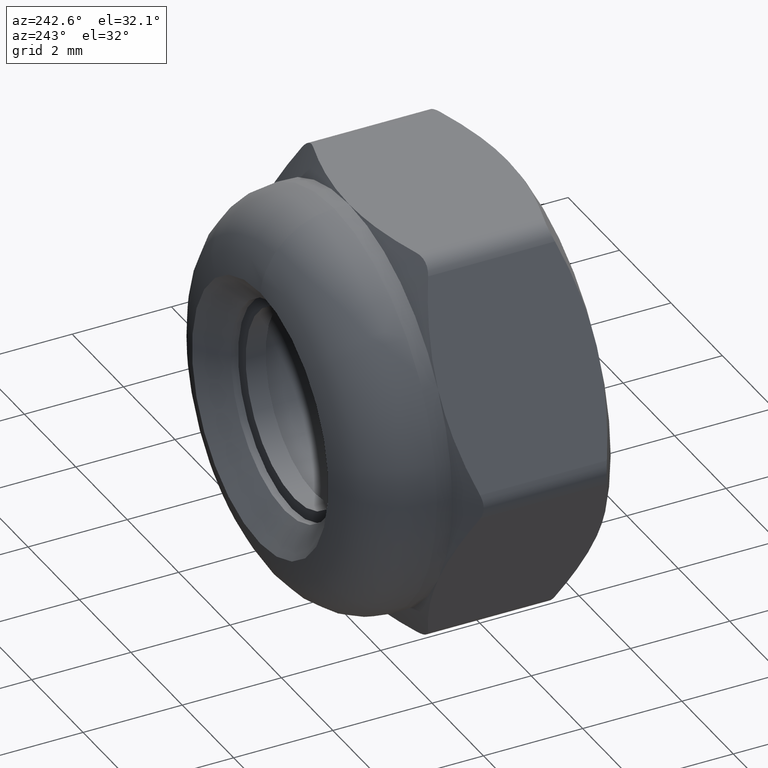
[diagram: clean part render]
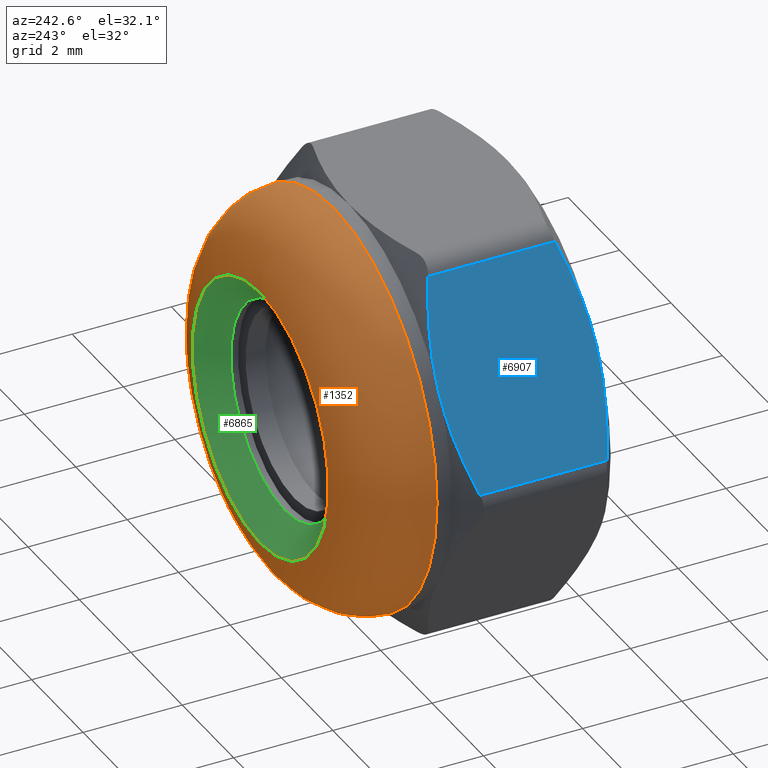
[diagram: same view with three faces highlighted in distinct colors, each labeled with its STEP entity id]
A machine part, auxiliary view with three faces highlighted in distinct colors.
Their STEP definitions:

[orange] entity #1352 — the highlighted toroidal blend (fillet) surface has major radius 2.5 mm and minor (blend) radius 1.5 mm.
#843 = CIRCLE ( 'NONE', #5137, 2.650000000000009237 ) ;
#1184 = CARTESIAN_POINT ( 'NONE',  ( 0.000000000000000000, 3.392481155659911263, -2.650000000000009237 ) ) ;
#1352 = ADVANCED_FACE ( 'NONE', ( #8805, #9768 ), #13320, .T. ) ;
#1473 = AXIS2_PLACEMENT_3D ( 'NONE', #6142, #9878, #3290 ) ;
#1885 = DIRECTION ( 'NONE',  ( 0.000000000000000000, -1.000000000000000000, 0.000000000000000000 ) ) ;
#2309 = ORIENTED_EDGE ( 'NONE', *, *, #14212, .F. ) ;
#2582 = VERTEX_POINT ( 'NONE', #1184 ) ;
#3290 = DIRECTION ( 'NONE',  ( 0.000000000000000000, 0.000000000000000000, 1.000000000000000000 ) ) ;
#4379 = CARTESIAN_POINT ( 'NONE',  ( 0.000000000000000000, 3.392481155659911263, 0.000000000000000000 ) ) ;
#5137 = AXIS2_PLACEMENT_3D ( 'NONE', #4379, #1885, #10431 ) ;
#5166 = CARTESIAN_POINT ( 'NONE',  ( 0.000000000000000000, 1.899999999999999689, 4.000000000000000000 ) ) ;
#6142 = CARTESIAN_POINT ( 'NONE',  ( 0.000000000000000000, 1.899999999999999689, 0.000000000000000000 ) ) ;
#6326 = CIRCLE ( 'NONE', #1473, 4.000000000000000000 ) ;
#6535 = EDGE_LOOP ( 'NONE', ( #2309 ) ) ;
#7774 = DIRECTION ( 'NONE',  ( 0.000000000000000000, 0.000000000000000000, 1.000000000000000000 ) ) ;
#8805 = FACE_OUTER_BOUND ( 'NONE', #14997, .T. ) ;
#9768 = FACE_OUTER_BOUND ( 'NONE', #6535, .T. ) ;
#9878 = DIRECTION ( 'NONE',  ( -0.000000000000000000, -1.000000000000000000, -0.000000000000000000 ) ) ;
#10319 = DIRECTION ( 'NONE',  ( 0.000000000000000000, 1.000000000000000000, 0.000000000000000000 ) ) ;
#10431 = DIRECTION ( 'NONE',  ( 0.000000000000000000, 0.000000000000000000, -1.000000000000000000 ) ) ;
#10501 = ORIENTED_EDGE ( 'NONE', *, *, #14073, .T. ) ;
#13320 = TOROIDAL_SURFACE ( 'NONE', #15633, 2.500000000000000000, 1.500000000000000000 ) ;
#14073 = EDGE_CURVE ( 'NONE', #2582, #2582, #843, .T. ) ;
#14101 = VERTEX_POINT ( 'NONE', #5166 ) ;
#14212 = EDGE_CURVE ( 'NONE', #14101, #14101, #6326, .T. ) ;
#14249 = CARTESIAN_POINT ( 'NONE',  ( 0.000000000000000000, 1.899999999999999689, 0.000000000000000000 ) ) ;
#14997 = EDGE_LOOP ( 'NONE', ( #10501 ) ) ;
#15633 = AXIS2_PLACEMENT_3D ( 'NONE', #14249, #10319, #7774 ) ;

[blue] entity #6907 — the highlighted planar face has unit normal (0.866, 0, -0.5).
#207 = CARTESIAN_POINT ( 'NONE',  ( -4.310360692517337888, 1.377699223232564663, 0.5342362816122031566 ) ) ;
#288 = B_SPLINE_CURVE_WITH_KNOTS ( 'NONE', 3,
 ( #4136, #7698, #10140, #11571, #207, #2672 ),
 .UNSPECIFIED., .F., .F.,
 ( 4, 2, 4 ),
 ( 0.002345898061757716469, 0.003361912581421082173, 0.004377927101084448311 ),
 .UNSPECIFIED. ) ;
#430 = PLANE ( 'NONE',  #5953 ) ;
#506 = VECTOR ( 'NONE', #7302, 1000.000000000000000 ) ;
#1049 = CARTESIAN_POINT ( 'NONE',  ( -2.617842537758170884, -1.377699223232563996, 3.465763718387799841 ) ) ;
#1083 = EDGE_CURVE ( 'NONE', #4367, #13002, #4014, .T. ) ;
#1158 = CARTESIAN_POINT ( 'NONE',  ( -2.453738644055909024, 1.279037853389166202, 3.750000000000000888 ) ) ;
#1199 = CARTESIAN_POINT ( 'NONE',  ( -4.474464586219600193, -1.279037853389166202, 0.2500000000000009437 ) ) ;
#1816 = CARTESIAN_POINT ( 'NONE',  ( -4.474464586219600193, 1.279037853389166646, 0.2500000000000010547 ) ) ;
#1887 = CARTESIAN_POINT ( 'NONE',  ( -3.464101615137753942, 1.600000000000000089, 2.000000000000000444 ) ) ;
#2181 = VERTEX_POINT ( 'NONE', #2693 ) ;
#2466 = CARTESIAN_POINT ( 'NONE',  ( -3.464101615137753942, 1.600000000000000089, 2.000000000000000444 ) ) ;
#2564 = ORIENTED_EDGE ( 'NONE', *, *, #5145, .T. ) ;
#2672 = CARTESIAN_POINT ( 'NONE',  ( -4.474464586219600193, 1.279037853389166646, 0.2500000000000010547 ) ) ;
#2693 = CARTESIAN_POINT ( 'NONE',  ( -2.453738644055909024, 1.279037853389166202, 3.750000000000000888 ) ) ;
#2733 = LINE ( 'NONE', #14327, #13862 ) ;
#2960 = CARTESIAN_POINT ( 'NONE',  ( -4.618802153517006737, 1.600000000000000089, 8.599241383207796206E-16 ) ) ;
#3946 = ORIENTED_EDGE ( 'NONE', *, *, #10965, .T. ) ;
#4014 = B_SPLINE_CURVE_WITH_KNOTS ( 'NONE', 3,
 ( #7352, #5207, #6477, #12754 ),
 .UNSPECIFIED., .F., .F.,
 ( 4, 4 ),
 ( 0.0002998517042431906861, 0.002345898061757718204 ),
 .UNSPECIFIED. ) ;
#4136 = CARTESIAN_POINT ( 'NONE',  ( -3.464101615137753942, 1.600000000000000089, 2.000000000000000444 ) ) ;
#4367 = VERTEX_POINT ( 'NONE', #1199 ) ;
#4415 = B_SPLINE_CURVE_WITH_KNOTS ( 'NONE', 3,
 ( #16006, #12209, #4554, #8517, #1049, #15792 ),
 .UNSPECIFIED., .F., .F.,
 ( 4, 2, 4 ),
 ( 0.002345898061757718204, 0.003361912581421084775, 0.004377927101084451780 ),
 .UNSPECIFIED. ) ;
#4554 = CARTESIAN_POINT ( 'NONE',  ( -3.120293610011477092, -1.569631693578380283, 2.595492932927614849 ) ) ;
#4859 = VERTEX_POINT ( 'NONE', #1887 ) ;
#4934 = CARTESIAN_POINT ( 'NONE',  ( -2.783142980624949470, 1.477079973810897506, 3.179454952828904002 ) ) ;
#5091 = EDGE_CURVE ( 'NONE', #13002, #13039, #4415, .T. ) ;
#5145 = EDGE_CURVE ( 'NONE', #2181, #4859, #15934, .T. ) ;
#5207 = CARTESIAN_POINT ( 'NONE',  ( -4.145060249650559747, -1.477079973810897062, 0.8205450471710978855 ) ) ;
#5953 = AXIS2_PLACEMENT_3D ( 'NONE', #2960, #8085, #12900 ) ;
#6477 = CARTESIAN_POINT ( 'NONE',  ( -3.809564516784439636, -1.600000000000045608, 1.401640702217772594 ) ) ;
#6530 = ORIENTED_EDGE ( 'NONE', *, *, #1083, .T. ) ;
#6834 = VERTEX_POINT ( 'NONE', #1816 ) ;
#6863 = DIRECTION ( 'NONE',  ( 0.000000000000000000, -1.000000000000000000, 0.000000000000000000 ) ) ;
#6907 = ADVANCED_FACE ( 'NONE', ( #12904 ), #430, .F. ) ;
#7302 = DIRECTION ( 'NONE',  ( -0.000000000000000000, 1.000000000000000000, -0.000000000000000000 ) ) ;
#7352 = CARTESIAN_POINT ( 'NONE',  ( -4.474464586219600193, -1.279037853389166202, 0.2500000000000009437 ) ) ;
#7698 = CARTESIAN_POINT ( 'NONE',  ( -3.635649695067104670, 1.600000000000047162, 1.702870009621479941 ) ) ;
#8085 = DIRECTION ( 'NONE',  ( 0.8660254037844385966, 0.000000000000000000, -0.5000000000000002220 ) ) ;
#8252 = EDGE_CURVE ( 'NONE', #6834, #4367, #2733, .T. ) ;
#8439 = CARTESIAN_POINT ( 'NONE',  ( -2.453738644055909468, 1.600000000000000089, 3.750000000000000444 ) ) ;
#8517 = CARTESIAN_POINT ( 'NONE',  ( -2.783705266230278141, -1.458311221253512979, 3.178481045592109755 ) ) ;
#9163 = ORIENTED_EDGE ( 'NONE', *, *, #5091, .T. ) ;
#10140 = CARTESIAN_POINT ( 'NONE',  ( -3.807909620264032569, 1.569631693578380505, 1.404507067072386928 ) ) ;
#10845 = CARTESIAN_POINT ( 'NONE',  ( -2.453738644055909024, -1.279037853389166202, 3.750000000000001332 ) ) ;
#10965 = EDGE_CURVE ( 'NONE', #4859, #6834, #288, .T. ) ;
#11462 = LINE ( 'NONE', #8439, #506 ) ;
#11571 = CARTESIAN_POINT ( 'NONE',  ( -4.144497964045229743, 1.458311221253512757, 0.8215189544078926875 ) ) ;
#11581 = EDGE_CURVE ( 'NONE', #13039, #2181, #11462, .T. ) ;
#11680 = ORIENTED_EDGE ( 'NONE', *, *, #11581, .T. ) ;
#12209 = CARTESIAN_POINT ( 'NONE',  ( -3.292553535208403659, -1.600000000000047162, 2.297129990378522724 ) ) ;
#12754 = CARTESIAN_POINT ( 'NONE',  ( -3.464101615137753942, -1.600000000000000089, 2.000000000000000444 ) ) ;
#12900 = DIRECTION ( 'NONE',  ( -0.5000000000000001110, 0.000000000000000000, -0.8660254037844384856 ) ) ;
#12904 = FACE_OUTER_BOUND ( 'NONE', #14031, .T. ) ;
#13002 = VERTEX_POINT ( 'NONE', #14548 ) ;
#13039 = VERTEX_POINT ( 'NONE', #10845 ) ;
#13601 = CARTESIAN_POINT ( 'NONE',  ( -3.118638713491069137, 1.600000000000045830, 2.598359297782229405 ) ) ;
#13862 = VECTOR ( 'NONE', #6863, 1000.000000000000000 ) ;
#14031 = EDGE_LOOP ( 'NONE', ( #3946, #16022, #6530, #9163, #11680, #2564 ) ) ;
#14327 = CARTESIAN_POINT ( 'NONE',  ( -4.474464586219600193, 1.600000000000000089, 0.2500000000000008882 ) ) ;
#14548 = CARTESIAN_POINT ( 'NONE',  ( -3.464101615137753942, -1.600000000000000089, 2.000000000000000444 ) ) ;
#15792 = CARTESIAN_POINT ( 'NONE',  ( -2.453738644055909024, -1.279037853389166202, 3.750000000000001332 ) ) ;
#15934 = B_SPLINE_CURVE_WITH_KNOTS ( 'NONE', 3,
 ( #1158, #4934, #13601, #2466 ),
 .UNSPECIFIED., .F., .F.,
 ( 4, 4 ),
 ( 0.0002998517042431890055, 0.002345898061757716903 ),
 .UNSPECIFIED. ) ;
#16006 = CARTESIAN_POINT ( 'NONE',  ( -3.464101615137753942, -1.600000000000000089, 2.000000000000000444 ) ) ;
#16022 = ORIENTED_EDGE ( 'NONE', *, *, #8252, .T. ) ;

[green] entity #6865 — the highlighted conical surface has half-angle 47.87 deg.
#813 = VERTEX_POINT ( 'NONE', #16182 ) ;
#843 = CIRCLE ( 'NONE', #5137, 2.650000000000009237 ) ;
#971 = DIRECTION ( 'NONE',  ( -0.000000000000000000, 1.000000000000000000, -0.000000000000000000 ) ) ;
#1184 = CARTESIAN_POINT ( 'NONE',  ( 0.000000000000000000, 3.392481155659911263, -2.650000000000009237 ) ) ;
#1885 = DIRECTION ( 'NONE',  ( 0.000000000000000000, -1.000000000000000000, 0.000000000000000000 ) ) ;
#2582 = VERTEX_POINT ( 'NONE', #1184 ) ;
#3428 = AXIS2_PLACEMENT_3D ( 'NONE', #8448, #971, #3628 ) ;
#3628 = DIRECTION ( 'NONE',  ( 0.000000000000000000, 0.000000000000000000, 1.000000000000000000 ) ) ;
#4379 = CARTESIAN_POINT ( 'NONE',  ( 0.000000000000000000, 3.392481155659911263, 0.000000000000000000 ) ) ;
#4917 = EDGE_LOOP ( 'NONE', ( #6618 ) ) ;
#5137 = AXIS2_PLACEMENT_3D ( 'NONE', #4379, #1885, #10431 ) ;
#5282 = CONICAL_SURFACE ( 'NONE', #6761, 2.650000000000011013, 0.8354818739782753356 ) ;
#6114 = EDGE_CURVE ( 'NONE', #813, #813, #7940, .T. ) ;
#6586 = EDGE_LOOP ( 'NONE', ( #10876 ) ) ;
#6618 = ORIENTED_EDGE ( 'NONE', *, *, #6114, .F. ) ;
#6761 = AXIS2_PLACEMENT_3D ( 'NONE', #7715, #7820, #6770 ) ;
#6770 = DIRECTION ( 'NONE',  ( 0.000000000000000000, 0.000000000000000000, 1.000000000000000000 ) ) ;
#6865 = ADVANCED_FACE ( 'NONE', ( #10122, #15372 ), #5282, .F. ) ;
#7715 = CARTESIAN_POINT ( 'NONE',  ( 0.000000000000000000, 3.392481155659928582, 0.000000000000000000 ) ) ;
#7820 = DIRECTION ( 'NONE',  ( -0.000000000000000000, 1.000000000000000000, -0.000000000000000000 ) ) ;
#7940 = CIRCLE ( 'NONE', #3428, 2.099999999999999645 ) ;
#8448 = CARTESIAN_POINT ( 'NONE',  ( 0.000000000000000000, 2.894987437106655292, 0.000000000000000000 ) ) ;
#10122 = FACE_BOUND ( 'NONE', #4917, .T. ) ;
#10431 = DIRECTION ( 'NONE',  ( 0.000000000000000000, 0.000000000000000000, -1.000000000000000000 ) ) ;
#10876 = ORIENTED_EDGE ( 'NONE', *, *, #14073, .F. ) ;
#14073 = EDGE_CURVE ( 'NONE', #2582, #2582, #843, .T. ) ;
#15372 = FACE_OUTER_BOUND ( 'NONE', #6586, .T. ) ;
#16182 = CARTESIAN_POINT ( 'NONE',  ( 0.000000000000000000, 2.894987437106655292, 2.099999999999999645 ) ) ;